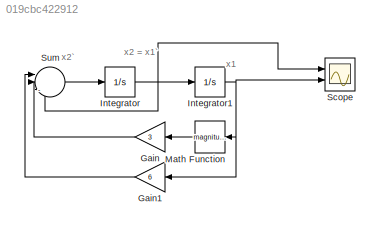
MODEL slx_019cbc422912
KIND model
CONFIG AbsTol = auto
CONFIG EnableMultiTasking = off
CONFIG FixedStep = 1e-7
CONFIG MaxStep = auto
CONFIG MinStep = auto
CONFIG RelTol = 1e-3
CONFIG SampleTimeConstraint = Unconstrained
CONFIG SolverName = daessc
CONFIG StartTime = 0.0
CONFIG StopTime = 3
BLOCK [Gain] Gain
  Gain = 3
  NameLocation = top
BLOCK [Gain] Gain1
  Gain = 6
  NameLocation = top
BLOCK [Integrator] Integrator
  InitialCondition = x20
  Ports = [1, 1]
BLOCK [Integrator] Integrator1
  InitialCondition = x10
  Ports = [1, 1]
BLOCK [Math] Math Function
  NameLocation = top
  Operator = magnitude^2
  Ports = [1, 1]
BLOCK [Scope] Scope
  Floating = off
  NumInputPorts = 2
  Ports = [2]
  ScopeSpecificationString = Simulink.scopes.TimeScopeBlockCfg('CurrentConfiguration', extmgr.ConfigurationSet(extmgr.Configuration('Core','General UI',true),extmgr.Configuration('Core','Source UI',true),extmgr.Configuration('Sources','WiredSimulink',true),extmgr.Configuration('Visuals','Time Domain',true,'SerializedDisplays',{struct('MinYLimReal','-5151299678.59037','MaxYLimReal','572366642.0656','YLabelReal','','MinYLimMag'...<+1441ch>
BLOCK [Sum] Sum
  Inputs = ||---
  Ports = [3, 1]
ANNOTATION (root): x1
ANNOTATION (root): x2 = x1`
ANNOTATION (root): x2`
LINE Gain1:1 -> Sum:1
LINE Gain:1 -> Sum:2
NET Integrator1:1 -> Gain1:1, Math Function:1, Scope:2
NET Integrator:1 -> Integrator1:1, Scope:1, Sum:3
LINE Math Function:1 -> Gain:1
LINE Sum:1 -> Integrator:1
note: NET lines group one-source signal fan-out (src -> all destinations, sorted); 1:1 wires keep LINE
